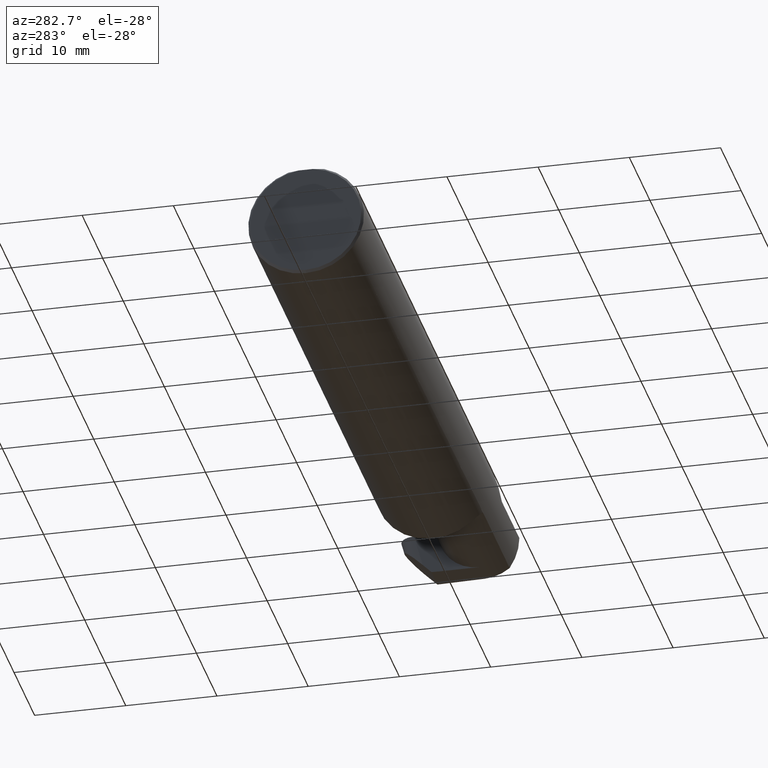
[diagram: clean part render]
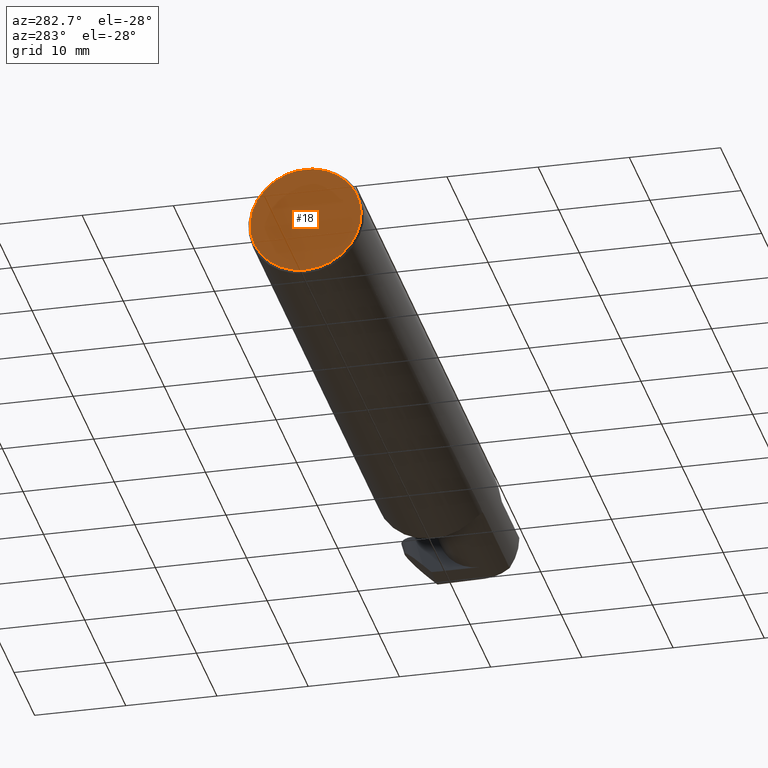
[diagram: same view with one face highlighted and labeled with its STEP entity id]
A machine part, auxiliary view. The second image highlights one B-rep face of the part: STEP entity #18.
In plain terms, the highlighted planar face has unit normal (1, 0, 0).
Its self-contained STEP definition (entity closure, byte-faithful):
#5 = AXIS2_PLACEMENT_3D ( 'NONE', #664, #14, #370 ) ;
#14 = DIRECTION ( 'NONE',  ( 1.000000000000000000, 0.000000000000000000, 0.000000000000000000 ) ) ;
#18 = ADVANCED_FACE ( 'NONE', ( #715 ), #115, .F. ) ;
#50 = ORIENTED_EDGE ( 'NONE', *, *, #351, .T. ) ;
#110 = DIRECTION ( 'NONE',  ( 0.000000000000000000, 0.000000000000000000, -1.000000000000000000 ) ) ;
#115 = PLANE ( 'NONE',  #5 ) ;
#179 = DIRECTION ( 'NONE',  ( 0.000000000000000000, 0.000000000000000000, -1.000000000000000000 ) ) ;
#187 = DIRECTION ( 'NONE',  ( -1.000000000000000000, -0.000000000000000000, -0.000000000000000000 ) ) ;
#226 = ORIENTED_EDGE ( 'NONE', *, *, #484, .T. ) ;
#232 = AXIS2_PLACEMENT_3D ( 'NONE', #597, #404, #110 ) ;
#304 = EDGE_LOOP ( 'NONE', ( #764, #50, #226 ) ) ;
#332 = CIRCLE ( 'NONE', #232, 0.2398500000000001742 ) ;
#349 = VERTEX_POINT ( 'NONE', #579 ) ;
#351 = EDGE_CURVE ( 'NONE', #349, #519, #332, .T. ) ;
#361 = CARTESIAN_POINT ( 'NONE',  ( 0.000000000000000000, 0.2498499999999998500, 0.2378499999999998671 ) ) ;
#370 = DIRECTION ( 'NONE',  ( 0.000000000000000000, 0.000000000000000000, -1.000000000000000000 ) ) ;
#404 = DIRECTION ( 'NONE',  ( -1.000000000000000000, -0.000000000000000000, -0.000000000000000000 ) ) ;
#484 = EDGE_CURVE ( 'NONE', #519, #638, #576, .T. ) ;
#504 = CARTESIAN_POINT ( 'NONE',  ( 0.000000000000000000, -0.03090954545120560767, 0.2378499999999998671 ) ) ;
#519 = VERTEX_POINT ( 'NONE', #792 ) ;
#529 = EDGE_CURVE ( 'NONE', #638, #349, #666, .T. ) ;
#576 = CIRCLE ( 'NONE', #655, 0.2398500000000001742 ) ;
#579 = CARTESIAN_POINT ( 'NONE',  ( 0.000000000000000000, 0.03090954545120574992, 0.2378499999999998671 ) ) ;
#597 = CARTESIAN_POINT ( 'NONE',  ( 0.000000000000000000, 0.000000000000000000, 0.000000000000000000 ) ) ;
#605 = DIRECTION ( 'NONE',  ( -0.000000000000000000, 1.000000000000000000, -0.000000000000000000 ) ) ;
#612 = CARTESIAN_POINT ( 'NONE',  ( 0.000000000000000000, 0.000000000000000000, 0.000000000000000000 ) ) ;
#638 = VERTEX_POINT ( 'NONE', #504 ) ;
#655 = AXIS2_PLACEMENT_3D ( 'NONE', #612, #187, #179 ) ;
#664 = CARTESIAN_POINT ( 'NONE',  ( 0.000000000000000000, 0.000000000000000000, 0.000000000000000000 ) ) ;
#666 = LINE ( 'NONE', #361, #760 ) ;
#715 = FACE_OUTER_BOUND ( 'NONE', #304, .T. ) ;
#760 = VECTOR ( 'NONE', #605, 39.37007874015748143 ) ;
#764 = ORIENTED_EDGE ( 'NONE', *, *, #529, .T. ) ;
#792 = CARTESIAN_POINT ( 'NONE',  ( 0.000000000000000000, 0.000000000000000000, -0.2398500000000001742 ) ) ;